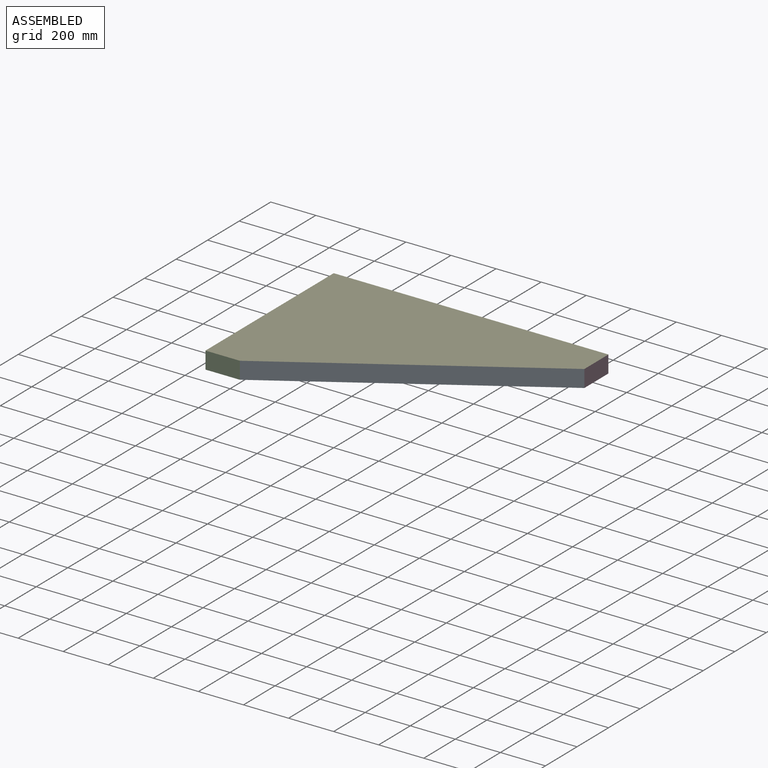
[diagram: assembled view]
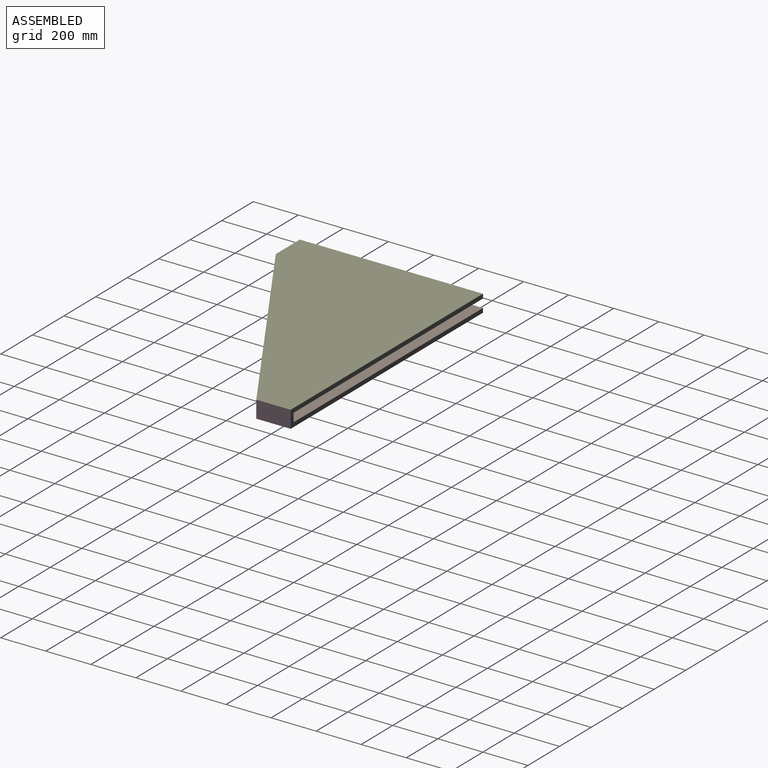
[diagram: assembled view, second angle]
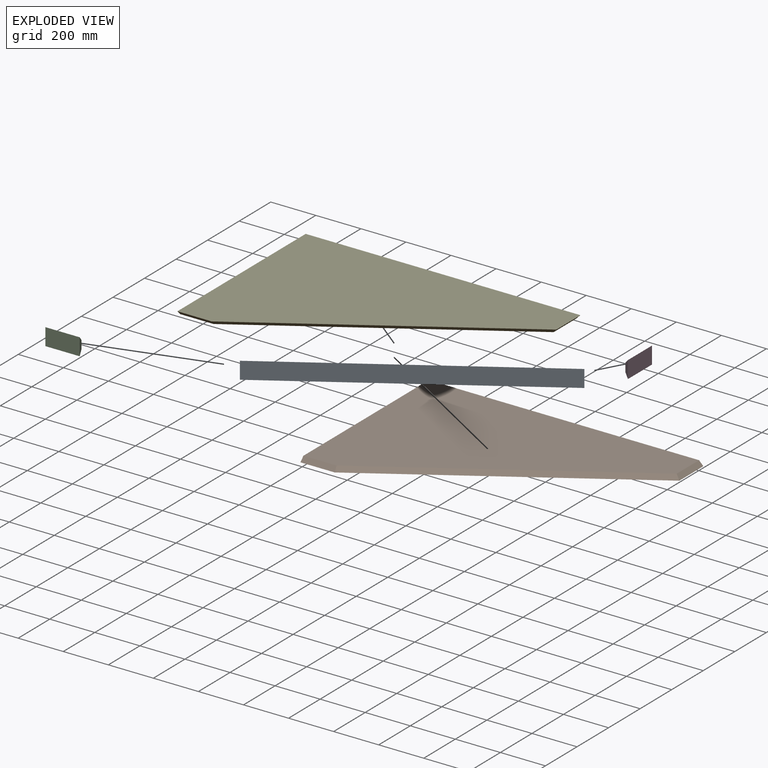
[diagram: exploded view]
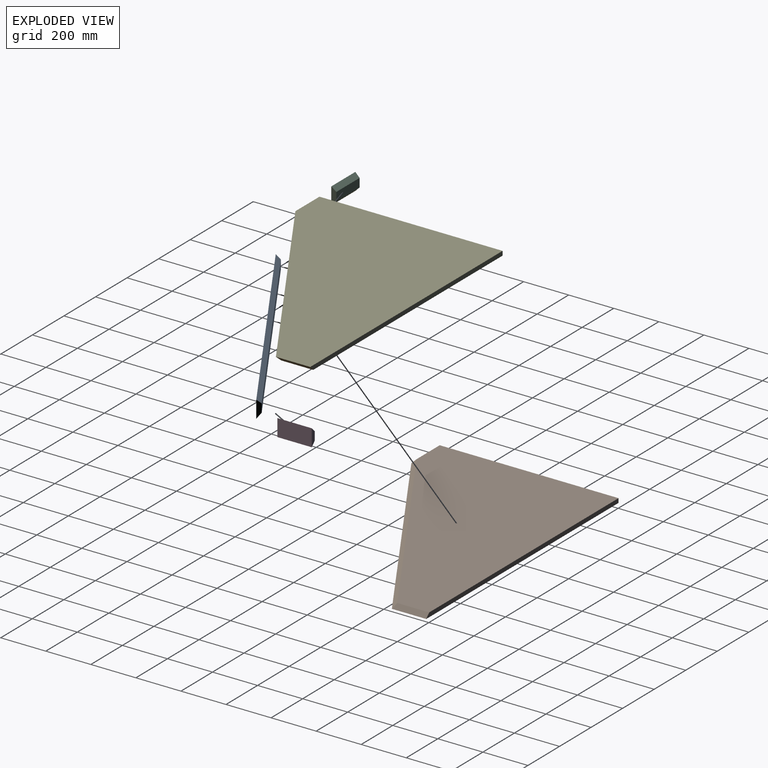
[diagram: exploded view, second angle]
ASSEMBLY  parts=5 mates=4
PART A: 6 faces, bbox 1254.7x19.1x76.2 mm
  f0: plane 1254.66x76.2mm, normal (0,-1,0), area 95605mm2, adj f2,f3,f4,f5
  f1: plane 1238.63x38.1mm, normal (0,1,0), area 47191.7mm2, adj f2,f3,f4,f5
  f2: plane 76.2x19.05mm, normal (-0.96,0.27,0), area 1131.9mm2, adj f0,f1,f3,f4
  f3: plane 1254.66x19.05mm, normal (0,0.71,-0.71), area 33585.5mm2, adj f0,f1,f2,f5
  f4: plane 1254.66x19.05mm, normal (0,0.71,0.71), area 33585.5mm2, adj f0,f1,f2,f5
  f5: plane 76.2x19.05mm, normal (0.87,0.49,0), area 1246.2mm2, adj f0,f1,f3,f4
PART B: 7 faces, bbox 1219.2x812.8x19.1 mm
  f0: plane 1219.2x19.05mm, normal (0,1,0), area 23044.3mm2, adj f1,f2,f3,f6
  f1: plane 812.8x19.05mm, normal (-1,0,0), area 15302.4mm2, adj f0,f2,f3,f4
  f2: plane 1200.15x793.75mm, normal (0,0,1), area 609305.9mm2, adj f0,f1,f4,f5,f6
  f3: plane 1219.2x812.8mm, normal (0,0,-1), area 638708.4mm2, adj f0,f1,f4,f5,f6
  f4: plane 152.4x19.05mm, normal (0,-0.71,0.71), area 4032.8mm2, adj f1,f2,f3,f5
  f5: plane 1072.22x671.01mm, normal (0.37,-0.6,0.71), area 33585.8mm2, adj f2,f3,f4,f6
  f6: plane 152.4x19.05mm, normal (0.71,0,0.71), area 3962.8mm2, adj f0,f2,f3,f5
PART C: 6 faces, bbox 152.4x19.1x76.2 mm
  f0: plane 76.2x19.05mm, normal (-1,0,0), area 1088.7mm2, adj f1,f2,f4,f5
  f1: plane 152.4x76.2mm, normal (0,-1,0), area 11612.9mm2, adj f0,f3,f4,f5
  f2: plane 146.98x38.1mm, normal (0,1,0), area 5600mm2, adj f0,f3,f4,f5
  f3: plane 76.2x19.05mm, normal (0.96,0.27,0), area 1131.9mm2, adj f1,f2,f4,f5
  f4: plane 152.4x19.05mm, normal (0,0.71,-0.71), area 4032.8mm2, adj f0,f1,f2,f3
  f5: plane 152.4x19.05mm, normal (0,0.71,0.71), area 4032.8mm2, adj f0,f1,f2,f3
PART D: 6 faces, bbox 152.4x19.1x76.2 mm
  f0: plane 76.2x19.05mm, normal (-1,0,0), area 1088.7mm2, adj f1,f2,f4,f5
  f1: plane 152.4x76.2mm, normal (0,-1,0), area 11612.9mm2, adj f0,f3,f4,f5
  f2: plane 141.79x38.1mm, normal (0,1,0), area 5402.1mm2, adj f0,f3,f4,f5
  f3: plane 76.2x19.05mm, normal (0.87,0.49,0), area 1246.2mm2, adj f1,f2,f4,f5
  f4: plane 152.4x19.05mm, normal (0,0.71,-0.71), area 3962.8mm2, adj f0,f1,f2,f3
  f5: plane 152.4x19.05mm, normal (0,0.71,0.71), area 3962.8mm2, adj f0,f1,f2,f3
PART E: 7 faces, bbox 1219.2x812.8x19.1 mm
  f0: plane 1219.2x19.05mm, normal (0,1,0), area 23044.3mm2, adj f1,f2,f3,f6
  f1: plane 812.8x19.05mm, normal (-1,0,0), area 15302.4mm2, adj f0,f2,f3,f4
  f2: plane 1219.2x812.8mm, normal (0,0,1), area 638708.4mm2, adj f0,f1,f4,f5,f6
  f3: plane 1200.15x793.75mm, normal (0,0,-1), area 609305.9mm2, adj f0,f1,f4,f5,f6
  f4: plane 152.4x19.05mm, normal (0,-0.71,-0.71), area 4032.8mm2, adj f1,f2,f3,f5
  f5: plane 1072.22x671.01mm, normal (0.37,-0.6,-0.71), area 33585.8mm2, adj f2,f3,f4,f6
  f6: plane 152.4x19.05mm, normal (0.71,0,-0.71), area 3962.8mm2, adj f0,f2,f3,f5
PLACE A rot(axis=(0,0,1),31.8deg) t=(142.37,-796.6,0)mm
PLACE B at identity fixed
PLACE C t=(0,-793.75,0)mm
PLACE D rot(axis=(0.71,-0.71,0),180deg) t=(1200.14,0,76.2)mm
PLACE E t=(-0.01,0,57.15)mm
MATE fastened A.f5 <-> D.f3  axis (0.49,0.87,0) through (1210.72,-147.68,38.1)mm
MATE fastened E.f6 <-> D.f4  axis (0.71,0,-0.71) through (1209.78,-73.57,66.79)mm
MATE fastened B.f4 <-> C.f4  axis (0,-0.71,0.71) through (74.85,-803.33,9.47)mm
MATE fastened A.f2 <-> C.f3  axis (-0.96,-0.27,0) through (149.99,-804.33,38.1)mm
